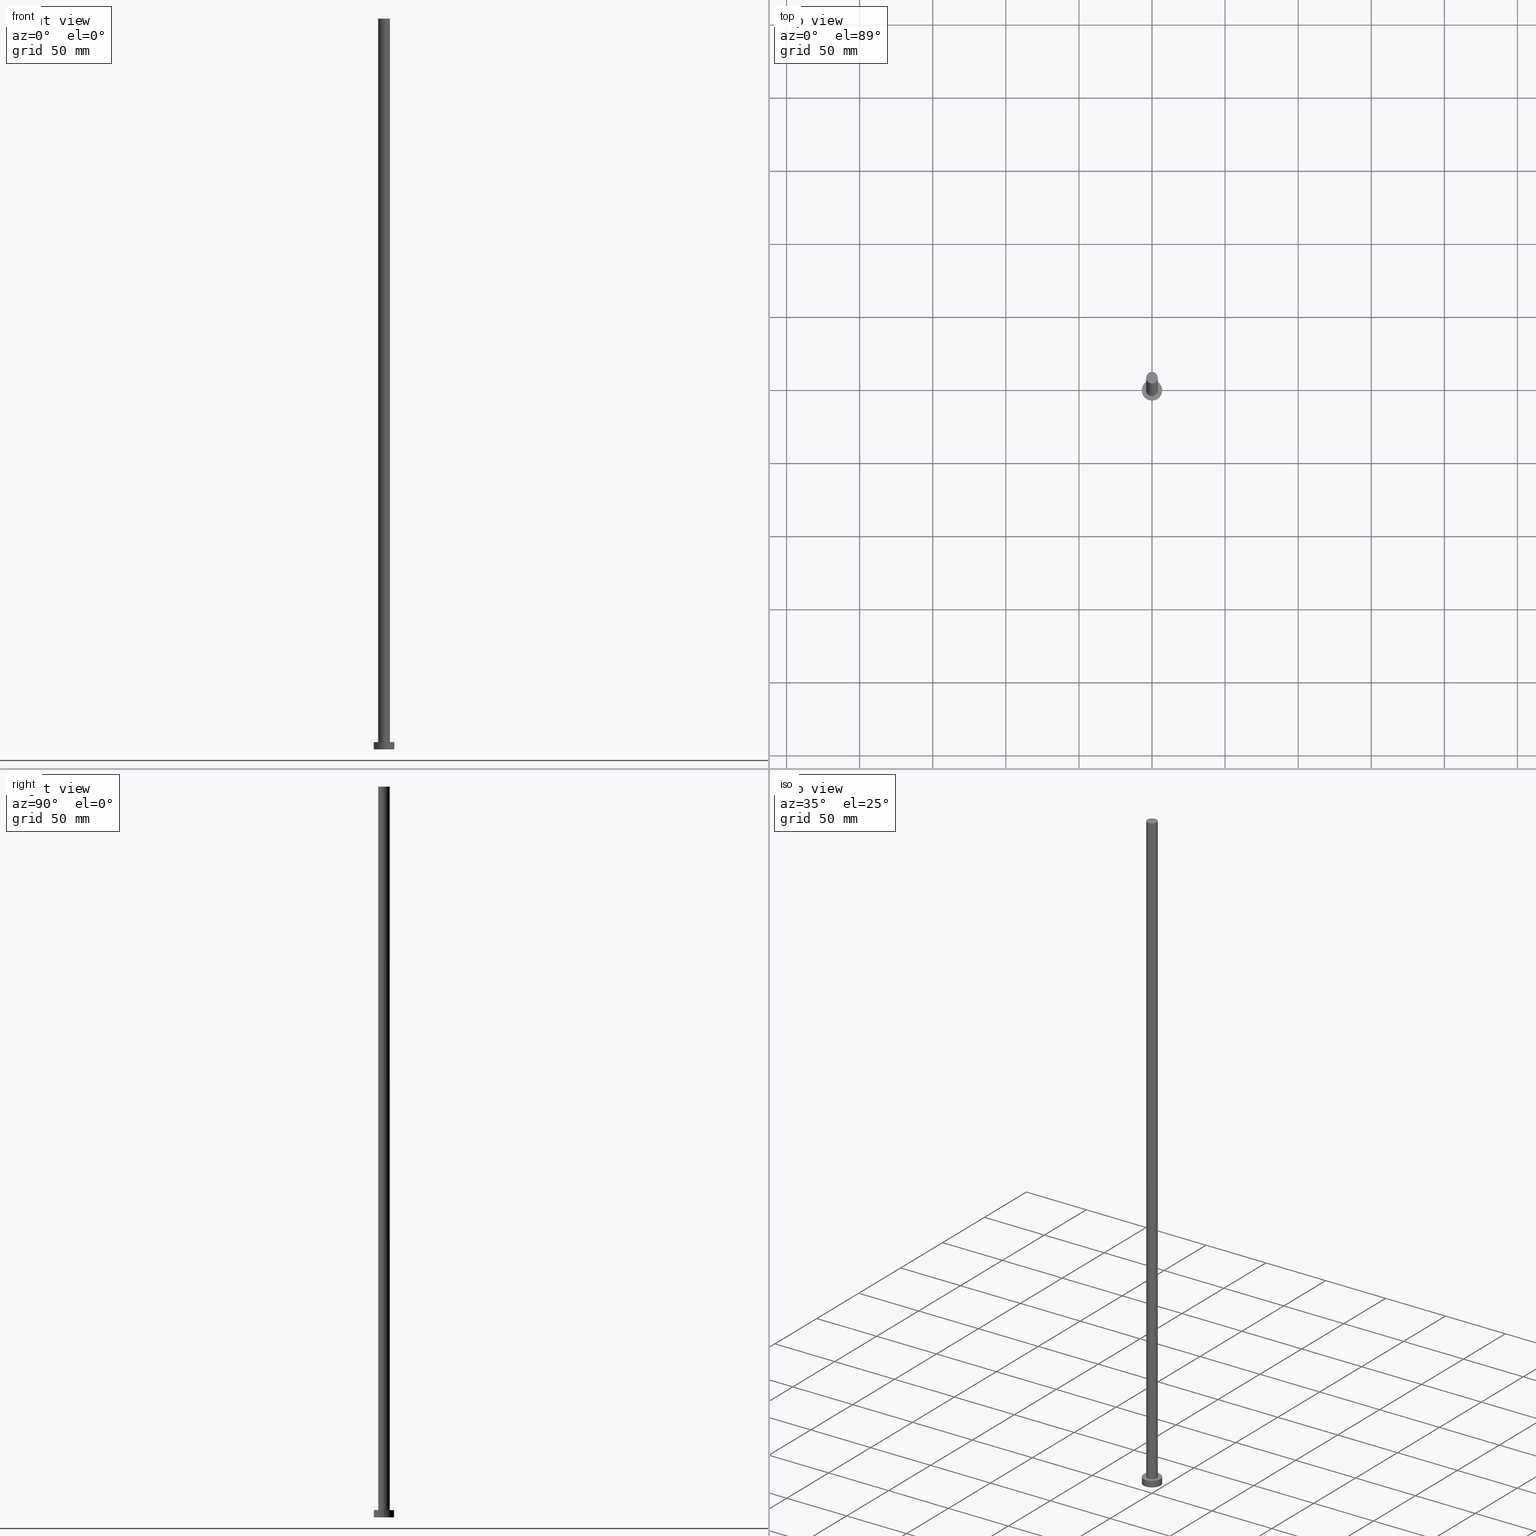
[diagram: canonical four-view strip — front | top / right | iso, engineering-drawing reading convention]
A machine part, canonical four-view strip (front | top / right | iso — engineering-drawing reading convention). The complete STEP part file that produces these views, byte-faithful:
ISO-10303-21;
HEADER;
FILE_DESCRIPTION (( 'STEP AP203' ),
    '1' );
FILE_NAME ('bdd0.STEP',
    '2023-02-13T10:54:16',
    ( '' ),
    ( '' ),
    'SwSTEP 2.0',
    'SolidWorks 2019',
    '' );
FILE_SCHEMA (( 'CONFIG_CONTROL_DESIGN' ));
ENDSEC;

DATA;
#1 = CC_DESIGN_PERSON_AND_ORGANIZATION_ASSIGNMENT ( #102, #251, ( #182 ) ) ;
#2 = FACE_OUTER_BOUND ( 'NONE', #135, .T. ) ;
#3 = AXIS2_PLACEMENT_3D ( 'NONE', #161, #149, #42 ) ;
#4 = PRODUCT_DEFINITION_SHAPE ( 'NONE', 'NONE',  #211 ) ;
#5 = LOCAL_TIME ( 11, 54, 16.00000000000000000, #69 ) ;
#6 = DIRECTION ( 'NONE',  ( -1.000000000000000000, 0.000000000000000000, 0.000000000000000000 ) ) ;
#7 = PERSON_AND_ORGANIZATION_ROLE ( 'design_supplier' ) ;
#8 = EDGE_CURVE ( 'NONE', #179, #198, #91, .T. ) ;
#9 = DIRECTION ( 'NONE',  ( 1.000000000000000000, 0.000000000000000000, 0.000000000000000000 ) ) ;
#10 = CARTESIAN_POINT ( 'NONE',  ( 4.000000000000000000, 4.898587196589412829E-16, 500.0000000000000000 ) ) ;
#11 = DATE_AND_TIME ( #165, #139 ) ;
#12 = APPROVAL_ROLE ( '' ) ;
#13 = CARTESIAN_POINT ( 'NONE',  ( -7.000000000000000000, 0.000000000000000000, 5.000000000000000000 ) ) ;
#14 = ORIENTED_EDGE ( 'NONE', *, *, #81, .T. ) ;
#15 = EDGE_LOOP ( 'NONE', ( #159, #111, #83, #14 ) ) ;
#16 = EDGE_LOOP ( 'NONE', ( #219, #140, #180, #248 ) ) ;
#17 = DIRECTION ( 'NONE',  ( 0.000000000000000000, 0.000000000000000000, 1.000000000000000000 ) ) ;
#18 = DIRECTION ( 'NONE',  ( -1.000000000000000000, 0.000000000000000000, 0.000000000000000000 ) ) ;
#19 = DIRECTION ( 'NONE',  ( -0.000000000000000000, -0.000000000000000000, -1.000000000000000000 ) ) ;
#20 = DIRECTION ( 'NONE',  ( 1.000000000000000000, 0.000000000000000000, 0.000000000000000000 ) ) ;
#21 = ORIENTED_EDGE ( 'NONE', *, *, #84, .F. ) ;
#22 = AXIS2_PLACEMENT_3D ( 'NONE', #172, #164, #9 ) ;
#23 = ORIENTED_EDGE ( 'NONE', *, *, #137, .T. ) ;
#24 = ADVANCED_FACE ( 'NONE', ( #160 ), #213, .T. ) ;
#25 = EDGE_CURVE ( 'NONE', #174, #108, #35, .T. ) ;
#26 = ORIENTED_EDGE ( 'NONE', *, *, #81, .F. ) ;
#27 = DIRECTION ( 'NONE',  ( 0.000000000000000000, 0.000000000000000000, 1.000000000000000000 ) ) ;
#28 = CIRCLE ( 'NONE', #116, 7.000000000000000000 ) ;
#29 = EDGE_CURVE ( 'NONE', #60, #181, #28, .T. ) ;
#30 =( NAMED_UNIT ( * ) SI_UNIT ( $, .STERADIAN. ) SOLID_ANGLE_UNIT ( ) );
#31 = AXIS2_PLACEMENT_3D ( 'NONE', #234, #103, #70 ) ;
#32 = DIRECTION ( 'NONE',  ( 0.000000000000000000, 0.000000000000000000, 1.000000000000000000 ) ) ;
#33 = CC_DESIGN_APPROVAL ( #228, ( #211 ) ) ;
#34 = DESIGN_CONTEXT ( 'detailed design', #191, 'design' ) ;
#35 = CIRCLE ( 'NONE', #22, 4.000000000000000000 ) ;
#36 = APPROVAL_STATUS ( 'not_yet_approved' ) ;
#37 = CARTESIAN_POINT ( 'NONE',  ( -4.000000000000000000, 0.000000000000000000, 500.0000000000000000 ) ) ;
#38 = CC_DESIGN_APPROVAL ( #253, ( #192 ) ) ;
#39 = DIRECTION ( 'NONE',  ( -0.000000000000000000, -0.000000000000000000, -1.000000000000000000 ) ) ;
#40 = DIRECTION ( 'NONE',  ( -0.000000000000000000, -0.000000000000000000, -1.000000000000000000 ) ) ;
#41 = ORIENTED_EDGE ( 'NONE', *, *, #29, .T. ) ;
#42 = DIRECTION ( 'NONE',  ( 1.000000000000000000, 0.000000000000000000, -0.000000000000000000 ) ) ;
#43 = ORGANIZATION ( 'NEUR�EN�', 'NEUR�EN�', '' ) ;
#44 = LINE ( 'NONE', #113, #204 ) ;
#45 = APPROVAL_DATE_TIME ( #225, #157 ) ;
#46 = PERSON_AND_ORGANIZATION ( #195, #43 ) ;
#47 = EDGE_CURVE ( 'NONE', #105, #85, #226, .T. ) ;
#48 = EDGE_CURVE ( 'NONE', #179, #174, #237, .T. ) ;
#49 = CLOSED_SHELL ( 'NONE', ( #106, #168, #61, #201, #209, #24, #215 ) ) ;
#50 = CALENDAR_DATE ( 2023, 13, 2 ) ;
#51 = PLANE ( 'NONE',  #3 ) ;
#52 = VECTOR ( 'NONE', #40, 1000.000000000000000 ) ;
#53 = LOCAL_TIME ( 11, 54, 16.00000000000000000, #152 ) ;
#54 = PRODUCT ( 'bdd0', 'bdd0', '', ( #112 ) ) ;
#55 = CC_DESIGN_DATE_AND_TIME_ASSIGNMENT ( #221, #171, ( #211 ) ) ;
#56 = PERSON_AND_ORGANIZATION ( #195, #43 ) ;
#57 = CC_DESIGN_SECURITY_CLASSIFICATION ( #182, ( #192 ) ) ;
#58 = EDGE_CURVE ( 'NONE', #60, #85, #220, .T. ) ;
#59 = PERSON_AND_ORGANIZATION ( #195, #43 ) ;
#60 = VERTEX_POINT ( 'NONE', #167 ) ;
#61 = ADVANCED_FACE ( 'NONE', ( #145 ), #71, .T. ) ;
#62 = PERSON_AND_ORGANIZATION ( #195, #43 ) ;
#63 = VECTOR ( 'NONE', #82, 1000.000000000000000 ) ;
#64 = APPROVAL_DATE_TIME ( #245, #228 ) ;
#65 = DIRECTION ( 'NONE',  ( 1.000000000000000000, 0.000000000000000000, 0.000000000000000000 ) ) ;
#66 = APPLICATION_PROTOCOL_DEFINITION ( 'international standard', 'config_control_design', 1994, #216 ) ;
#67 = CC_DESIGN_PERSON_AND_ORGANIZATION_ASSIGNMENT ( #59, #118, ( #211 ) ) ;
#68 = DIRECTION ( 'NONE',  ( 0.000000000000000000, 0.000000000000000000, 1.000000000000000000 ) ) ;
#69 = COORDINATED_UNIVERSAL_TIME_OFFSET ( 1, 0, .AHEAD. ) ;
#70 = DIRECTION ( 'NONE',  ( -1.000000000000000000, 0.000000000000000000, 0.000000000000000000 ) ) ;
#71 = CYLINDRICAL_SURFACE ( 'NONE', #99, 7.000000000000000000 ) ;
#72 = CC_DESIGN_PERSON_AND_ORGANIZATION_ASSIGNMENT ( #92, #74, ( #54 ) ) ;
#73 = ORIENTED_EDGE ( 'NONE', *, *, #95, .T. ) ;
#74 = PERSON_AND_ORGANIZATION_ROLE ( 'design_owner' ) ;
#75 = CARTESIAN_POINT ( 'NONE',  ( 7.000000000000000000, 8.572527594031473190E-16, 0.000000000000000000 ) ) ;
#76 = DIRECTION ( 'NONE',  ( 1.000000000000000000, 0.000000000000000000, 0.000000000000000000 ) ) ;
#77 = CARTESIAN_POINT ( 'NONE',  ( -7.000000000000000000, 0.000000000000000000, 0.000000000000000000 ) ) ;
#78 = ORIENTED_EDGE ( 'NONE', *, *, #48, .T. ) ;
#79 = EDGE_LOOP ( 'NONE', ( #41, #200 ) ) ;
#80 = DIRECTION ( 'NONE',  ( -1.000000000000000000, 0.000000000000000000, 0.000000000000000000 ) ) ;
#81 = EDGE_CURVE ( 'NONE', #85, #105, #176, .T. ) ;
#82 = DIRECTION ( 'NONE',  ( -0.000000000000000000, -0.000000000000000000, -1.000000000000000000 ) ) ;
#83 = ORIENTED_EDGE ( 'NONE', *, *, #58, .T. ) ;
#84 = EDGE_CURVE ( 'NONE', #198, #179, #197, .T. ) ;
#85 = VERTEX_POINT ( 'NONE', #77 ) ;
#86 =( NAMED_UNIT ( * ) PLANE_ANGLE_UNIT ( ) SI_UNIT ( $, .RADIAN. ) );
#87 = CARTESIAN_POINT ( 'NONE',  ( -4.000000000000000000, 0.000000000000000000, 5.000000000000000000 ) ) ;
#88 = MANIFOLD_SOLID_BREP ( 'P�idat vysunut�m3', #49 ) ;
#89 = CARTESIAN_POINT ( 'NONE',  ( 0.000000000000000000, 0.000000000000000000, 5.000000000000000000 ) ) ;
#90 = ORIENTED_EDGE ( 'NONE', *, *, #95, .F. ) ;
#91 = CIRCLE ( 'NONE', #238, 4.000000000000000000 ) ;
#92 = PERSON_AND_ORGANIZATION ( #195, #43 ) ;
#93 = AXIS2_PLACEMENT_3D ( 'NONE', #194, #218, #124 ) ;
#94 = EDGE_LOOP ( 'NONE', ( #26, #138 ) ) ;
#95 = EDGE_CURVE ( 'NONE', #108, #174, #110, .T. ) ;
#96 = DIRECTION ( 'NONE',  ( 1.000000000000000000, 0.000000000000000000, -0.000000000000000000 ) ) ;
#97 = EDGE_LOOP ( 'NONE', ( #155, #21, #23, #73 ) ) ;
#98 = DIRECTION ( 'NONE',  ( 0.000000000000000000, 0.000000000000000000, 1.000000000000000000 ) ) ;
#99 = AXIS2_PLACEMENT_3D ( 'NONE', #128, #109, #80 ) ;
#100 = DIRECTION ( 'NONE',  ( 0.000000000000000000, 0.000000000000000000, 1.000000000000000000 ) ) ;
#101 = FACE_OUTER_BOUND ( 'NONE', #94, .T. ) ;
#102 = PERSON_AND_ORGANIZATION ( #195, #43 ) ;
#103 = DIRECTION ( 'NONE',  ( -0.000000000000000000, -0.000000000000000000, -1.000000000000000000 ) ) ;
#104 = FACE_BOUND ( 'NONE', #196, .T. ) ;
#105 = VERTEX_POINT ( 'NONE', #75 ) ;
#106 = ADVANCED_FACE ( 'NONE', ( #150 ), #224, .T. ) ;
#107 = FACE_OUTER_BOUND ( 'NONE', #79, .T. ) ;
#108 = VERTEX_POINT ( 'NONE', #87 ) ;
#109 = DIRECTION ( 'NONE',  ( -0.000000000000000000, -0.000000000000000000, -1.000000000000000000 ) ) ;
#110 = CIRCLE ( 'NONE', #208, 4.000000000000000000 ) ;
#111 = ORIENTED_EDGE ( 'NONE', *, *, #29, .F. ) ;
#112 = MECHANICAL_CONTEXT ( 'NONE', #216, 'mechanical' ) ;
#113 = CARTESIAN_POINT ( 'NONE',  ( -4.000000000000000000, 0.000000000000000000, 500.0000000000000000 ) ) ;
#114 = SHAPE_DEFINITION_REPRESENTATION ( #4, #223 ) ;
#115 = ORIENTED_EDGE ( 'NONE', *, *, #25, .T. ) ;
#116 = AXIS2_PLACEMENT_3D ( 'NONE', #241, #32, #151 ) ;
#117 = ORIENTED_EDGE ( 'NONE', *, *, #25, .F. ) ;
#118 = PERSON_AND_ORGANIZATION_ROLE ( 'creator' ) ;
#119 = CC_DESIGN_PERSON_AND_ORGANIZATION_ASSIGNMENT ( #56, #188, ( #192 ) ) ;
#120 = AXIS2_PLACEMENT_3D ( 'NONE', #199, #239, #18 ) ;
#121 = CARTESIAN_POINT ( 'NONE',  ( 0.000000000000000000, 0.000000000000000000, 0.000000000000000000 ) ) ;
#122 = ORIENTED_EDGE ( 'NONE', *, *, #137, .F. ) ;
#123 = AXIS2_PLACEMENT_3D ( 'NONE', #127, #39, #6 ) ;
#124 = DIRECTION ( 'NONE',  ( 1.000000000000000000, 0.000000000000000000, -0.000000000000000000 ) ) ;
#125 = AXIS2_PLACEMENT_3D ( 'NONE', #89, #68, #141 ) ;
#126 = SECURITY_CLASSIFICATION_LEVEL ( 'unclassified' ) ;
#127 = CARTESIAN_POINT ( 'NONE',  ( 0.000000000000000000, 0.000000000000000000, 500.0000000000000000 ) ) ;
#128 = CARTESIAN_POINT ( 'NONE',  ( 0.000000000000000000, 0.000000000000000000, 5.000000000000000000 ) ) ;
#129 = CC_DESIGN_PERSON_AND_ORGANIZATION_ASSIGNMENT ( #233, #7, ( #192 ) ) ;
#130 = LOCAL_TIME ( 11, 54, 16.00000000000000000, #173 ) ;
#131 =( LENGTH_UNIT ( ) NAMED_UNIT ( * ) SI_UNIT ( .MILLI., .METRE. ) );
#132 = CARTESIAN_POINT ( 'NONE',  ( 7.000000000000000000, 8.572527594031473190E-16, 5.000000000000000000 ) ) ;
#133 = DIRECTION ( 'NONE',  ( 1.000000000000000000, 0.000000000000000000, 0.000000000000000000 ) ) ;
#134 = CIRCLE ( 'NONE', #125, 7.000000000000000000 ) ;
#135 = EDGE_LOOP ( 'NONE', ( #154, #178 ) ) ;
#136 = APPROVAL_STATUS ( 'not_yet_approved' ) ;
#137 = EDGE_CURVE ( 'NONE', #198, #108, #44, .T. ) ;
#138 = ORIENTED_EDGE ( 'NONE', *, *, #47, .F. ) ;
#139 = LOCAL_TIME ( 11, 54, 16.00000000000000000, #190 ) ;
#140 = ORIENTED_EDGE ( 'NONE', *, *, #246, .T. ) ;
#141 = DIRECTION ( 'NONE',  ( 1.000000000000000000, 0.000000000000000000, 0.000000000000000000 ) ) ;
#142 = APPROVAL_STATUS ( 'not_yet_approved' ) ;
#143 = APPROVAL_ROLE ( '' ) ;
#144 = VECTOR ( 'NONE', #153, 1000.000000000000000 ) ;
#145 = FACE_OUTER_BOUND ( 'NONE', #15, .T. ) ;
#146 = CALENDAR_DATE ( 2023, 13, 2 ) ;
#147 = CARTESIAN_POINT ( 'NONE',  ( 4.000000000000000000, 4.898587196589412829E-16, 5.000000000000000000 ) ) ;
#148 =( GEOMETRIC_REPRESENTATION_CONTEXT ( 3 ) GLOBAL_UNCERTAINTY_ASSIGNED_CONTEXT ( ( #187 ) ) GLOBAL_UNIT_ASSIGNED_CONTEXT ( ( #131, #86, #30 ) ) REPRESENTATION_CONTEXT ( 'NONE', 'WORKASPACE' ) );
#149 = DIRECTION ( 'NONE',  ( 0.000000000000000000, 0.000000000000000000, 1.000000000000000000 ) ) ;
#150 = FACE_OUTER_BOUND ( 'NONE', #205, .T. ) ;
#151 = DIRECTION ( 'NONE',  ( 1.000000000000000000, 0.000000000000000000, 0.000000000000000000 ) ) ;
#152 = COORDINATED_UNIVERSAL_TIME_OFFSET ( 1, 0, .AHEAD. ) ;
#153 = DIRECTION ( 'NONE',  ( -0.000000000000000000, -0.000000000000000000, -1.000000000000000000 ) ) ;
#154 = ORIENTED_EDGE ( 'NONE', *, *, #84, .T. ) ;
#155 = ORIENTED_EDGE ( 'NONE', *, *, #48, .F. ) ;
#156 = EDGE_CURVE ( 'NONE', #181, #60, #134, .T. ) ;
#157 = APPROVAL ( #36, 'NEUR�EN�' ) ;
#158 = AXIS2_PLACEMENT_3D ( 'NONE', #121, #100, #65 ) ;
#159 = ORIENTED_EDGE ( 'NONE', *, *, #246, .F. ) ;
#160 = FACE_OUTER_BOUND ( 'NONE', #97, .T. ) ;
#161 = CARTESIAN_POINT ( 'NONE',  ( 0.000000000000000000, 0.000000000000000000, 500.0000000000000000 ) ) ;
#162 = CC_DESIGN_APPROVAL ( #157, ( #182 ) ) ;
#163 = DIRECTION ( 'NONE',  ( 1.000000000000000000, 0.000000000000000000, 0.000000000000000000 ) ) ;
#164 = DIRECTION ( 'NONE',  ( 0.000000000000000000, 0.000000000000000000, 1.000000000000000000 ) ) ;
#165 = CALENDAR_DATE ( 2023, 13, 2 ) ;
#166 = CARTESIAN_POINT ( 'NONE',  ( 4.000000000000000000, 4.898587196589412829E-16, 500.0000000000000000 ) ) ;
#167 = CARTESIAN_POINT ( 'NONE',  ( -7.000000000000000000, 0.000000000000000000, 5.000000000000000000 ) ) ;
#168 = ADVANCED_FACE ( 'NONE', ( #232 ), #214, .T. ) ;
#169 = APPROVAL_PERSON_ORGANIZATION ( #62, #228, #227 ) ;
#170 = CARTESIAN_POINT ( 'NONE',  ( 0.000000000000000000, 0.000000000000000000, 0.000000000000000000 ) ) ;
#171 = DATE_TIME_ROLE ( 'creation_date' ) ;
#172 = CARTESIAN_POINT ( 'NONE',  ( 0.000000000000000000, 0.000000000000000000, 5.000000000000000000 ) ) ;
#173 = COORDINATED_UNIVERSAL_TIME_OFFSET ( 1, 0, .AHEAD. ) ;
#174 = VERTEX_POINT ( 'NONE', #147 ) ;
#175 = DIRECTION ( 'NONE',  ( 1.000000000000000000, 0.000000000000000000, 0.000000000000000000 ) ) ;
#176 = CIRCLE ( 'NONE', #158, 7.000000000000000000 ) ;
#177 = DIRECTION ( 'NONE',  ( 0.000000000000000000, 0.000000000000000000, 1.000000000000000000 ) ) ;
#178 = ORIENTED_EDGE ( 'NONE', *, *, #8, .T. ) ;
#179 = VERTEX_POINT ( 'NONE', #166 ) ;
#180 = ORIENTED_EDGE ( 'NONE', *, *, #47, .T. ) ;
#181 = VERTEX_POINT ( 'NONE', #236 ) ;
#182 = SECURITY_CLASSIFICATION ( '', '', #126 ) ;
#183 = CARTESIAN_POINT ( 'NONE',  ( 0.000000000000000000, 0.000000000000000000, 0.000000000000000000 ) ) ;
#184 = LOCAL_TIME ( 11, 54, 16.00000000000000000, #186 ) ;
#185 = DIRECTION ( 'NONE',  ( 0.000000000000000000, 0.000000000000000000, 1.000000000000000000 ) ) ;
#186 = COORDINATED_UNIVERSAL_TIME_OFFSET ( 1, 0, .AHEAD. ) ;
#187 = UNCERTAINTY_MEASURE_WITH_UNIT (LENGTH_MEASURE( 1.000000000000000082E-05 ), #131, 'distance_accuracy_value', 'NONE');
#188 = PERSON_AND_ORGANIZATION_ROLE ( 'creator' ) ;
#189 = CARTESIAN_POINT ( 'NONE',  ( 0.000000000000000000, 0.000000000000000000, 500.0000000000000000 ) ) ;
#190 = COORDINATED_UNIVERSAL_TIME_OFFSET ( 1, 0, .AHEAD. ) ;
#191 = APPLICATION_CONTEXT ( 'configuration controlled 3d designs of mechanical parts and assemblies' ) ;
#192 = PRODUCT_DEFINITION_FORMATION_WITH_SPECIFIED_SOURCE ( 'LIBOVOLN�', '', #54, .NOT_KNOWN. ) ;
#193 = DATE_TIME_ROLE ( 'classification_date' ) ;
#194 = CARTESIAN_POINT ( 'NONE',  ( 0.000000000000000000, 0.000000000000000000, 5.000000000000000000 ) ) ;
#195 = PERSON ( 'NEUR�EN�', 'NEUR�EN�', 'NEUR�EN�', ('NEUR�EN�'), ('NEUR�EN�'), ('NEUR�EN�') ) ;
#196 = EDGE_LOOP ( 'NONE', ( #90, #117 ) ) ;
#197 = CIRCLE ( 'NONE', #231, 4.000000000000000000 ) ;
#198 = VERTEX_POINT ( 'NONE', #37 ) ;
#199 = CARTESIAN_POINT ( 'NONE',  ( 0.000000000000000000, 0.000000000000000000, 500.0000000000000000 ) ) ;
#200 = ORIENTED_EDGE ( 'NONE', *, *, #156, .T. ) ;
#201 = ADVANCED_FACE ( 'NONE', ( #104, #107 ), #230, .T. ) ;
#202 = ORIENTED_EDGE ( 'NONE', *, *, #8, .F. ) ;
#203 = DIRECTION ( 'NONE',  ( 0.000000000000000000, 0.000000000000000000, 1.000000000000000000 ) ) ;
#204 = VECTOR ( 'NONE', #19, 1000.000000000000000 ) ;
#205 = EDGE_LOOP ( 'NONE', ( #202, #78, #115, #122 ) ) ;
#206 = CARTESIAN_POINT ( 'NONE',  ( 0.000000000000000000, 0.000000000000000000, 0.000000000000000000 ) ) ;
#207 = AXIS2_PLACEMENT_3D ( 'NONE', #170, #17, #175 ) ;
#208 = AXIS2_PLACEMENT_3D ( 'NONE', #244, #177, #133 ) ;
#209 = ADVANCED_FACE ( 'NONE', ( #101 ), #247, .F. ) ;
#210 = CARTESIAN_POINT ( 'NONE',  ( 0.000000000000000000, 0.000000000000000000, 500.0000000000000000 ) ) ;
#211 = PRODUCT_DEFINITION ( 'NEZN�M�', '', #192, #34 ) ;
#212 = APPROVAL_DATE_TIME ( #11, #253 ) ;
#213 = CYLINDRICAL_SURFACE ( 'NONE', #123, 4.000000000000000000 ) ;
#214 = CYLINDRICAL_SURFACE ( 'NONE', #31, 7.000000000000000000 ) ;
#215 = ADVANCED_FACE ( 'NONE', ( #2 ), #51, .T. ) ;
#216 = APPLICATION_CONTEXT ( 'configuration controlled 3d designs of mechanical parts and assemblies' ) ;
#217 = PERSON_AND_ORGANIZATION ( #195, #43 ) ;
#218 = DIRECTION ( 'NONE',  ( 0.000000000000000000, 0.000000000000000000, 1.000000000000000000 ) ) ;
#219 = ORIENTED_EDGE ( 'NONE', *, *, #156, .F. ) ;
#220 = LINE ( 'NONE', #13, #52 ) ;
#221 = DATE_AND_TIME ( #250, #184 ) ;
#222 = CC_DESIGN_DATE_AND_TIME_ASSIGNMENT ( #235, #193, ( #182 ) ) ;
#223 = ADVANCED_BREP_SHAPE_REPRESENTATION ( 'bdd0', ( #88, #242 ), #148 ) ;
#224 = CYLINDRICAL_SURFACE ( 'NONE', #120, 4.000000000000000000 ) ;
#225 = DATE_AND_TIME ( #252, #130 ) ;
#226 = CIRCLE ( 'NONE', #207, 7.000000000000000000 ) ;
#227 = APPROVAL_ROLE ( '' ) ;
#228 = APPROVAL ( #136, 'NEUR�EN�' ) ;
#229 = APPROVAL_PERSON_ORGANIZATION ( #46, #253, #143 ) ;
#230 = PLANE ( 'NONE',  #93 ) ;
#231 = AXIS2_PLACEMENT_3D ( 'NONE', #189, #185, #76 ) ;
#232 = FACE_OUTER_BOUND ( 'NONE', #16, .T. ) ;
#233 = PERSON_AND_ORGANIZATION ( #195, #43 ) ;
#234 = CARTESIAN_POINT ( 'NONE',  ( 0.000000000000000000, 0.000000000000000000, 5.000000000000000000 ) ) ;
#235 = DATE_AND_TIME ( #146, #5 ) ;
#236 = CARTESIAN_POINT ( 'NONE',  ( 7.000000000000000000, 8.572527594031473190E-16, 5.000000000000000000 ) ) ;
#237 = LINE ( 'NONE', #10, #63 ) ;
#238 = AXIS2_PLACEMENT_3D ( 'NONE', #210, #98, #163 ) ;
#239 = DIRECTION ( 'NONE',  ( -0.000000000000000000, -0.000000000000000000, -1.000000000000000000 ) ) ;
#240 = PRODUCT_RELATED_PRODUCT_CATEGORY ( 'detail', '', ( #54 ) ) ;
#241 = CARTESIAN_POINT ( 'NONE',  ( 0.000000000000000000, 0.000000000000000000, 5.000000000000000000 ) ) ;
#242 = AXIS2_PLACEMENT_3D ( 'NONE', #183, #203, #20 ) ;
#243 = APPLICATION_PROTOCOL_DEFINITION ( 'international standard', 'config_control_design', 1994, #191 ) ;
#244 = CARTESIAN_POINT ( 'NONE',  ( 0.000000000000000000, 0.000000000000000000, 5.000000000000000000 ) ) ;
#245 = DATE_AND_TIME ( #50, #53 ) ;
#246 = EDGE_CURVE ( 'NONE', #181, #105, #255, .T. ) ;
#247 = PLANE ( 'NONE',  #254 ) ;
#248 = ORIENTED_EDGE ( 'NONE', *, *, #58, .F. ) ;
#249 = APPROVAL_PERSON_ORGANIZATION ( #217, #157, #12 ) ;
#250 = CALENDAR_DATE ( 2023, 13, 2 ) ;
#251 = PERSON_AND_ORGANIZATION_ROLE ( 'classification_officer' ) ;
#252 = CALENDAR_DATE ( 2023, 13, 2 ) ;
#253 = APPROVAL ( #142, 'NEUR�EN�' ) ;
#254 = AXIS2_PLACEMENT_3D ( 'NONE', #206, #27, #96 ) ;
#255 = LINE ( 'NONE', #132, #144 ) ;
ENDSEC;
END-ISO-10303-21;
